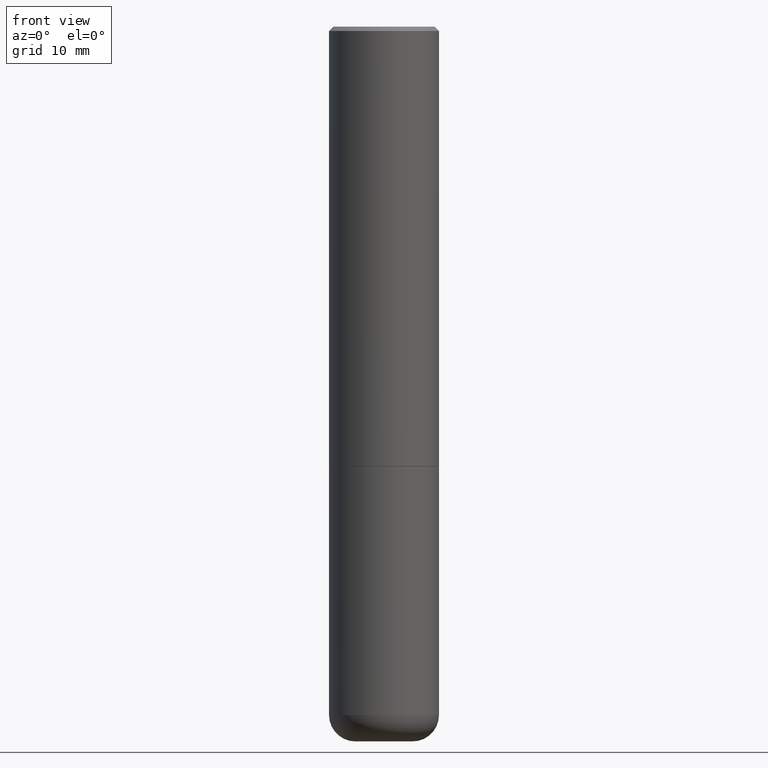
[diagram: clean part render]
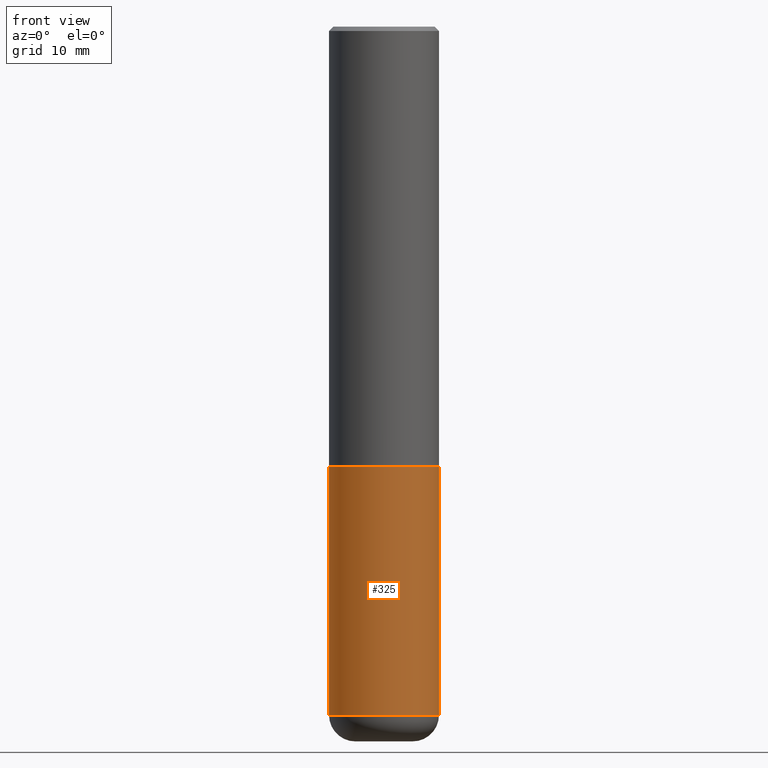
[diagram: same view with one face highlighted and labeled with its STEP entity id]
A machine part, front view. The second image highlights one B-rep face of the part: STEP entity #325.
In plain terms, the highlighted cylindrical surface (partial cylindrical patch) has radius 6.35 mm, axis along (-0, 0, 1).
Its self-contained STEP definition (entity closure, byte-faithful):
#8 = CARTESIAN_POINT ( 'NONE',  ( -0.2499999999999995559, 1.776356839400247309E-15, -1.229733772563724203E-29 ) ) ;
#14 = VECTOR ( 'NONE', #194, 39.37007874015748143 ) ;
#18 = CARTESIAN_POINT ( 'NONE',  ( -0.2499999999999996669, -7.179300771427075001E-15, -2.000000000000000000 ) ) ;
#40 = CYLINDRICAL_SURFACE ( 'NONE', #416, 0.2499999999999995559 ) ;
#56 = AXIS2_PLACEMENT_3D ( 'NONE', #310, #431, #392 ) ;
#64 = CARTESIAN_POINT ( 'NONE',  ( 0.2499999999999994449, -1.267409321338991461E-14, -3.130004569232299527 ) ) ;
#65 = VERTEX_POINT ( 'NONE', #237 ) ;
#67 = EDGE_CURVE ( 'NONE', #330, #456, #464, .T. ) ;
#78 = EDGE_CURVE ( 'NONE', #330, #457, #80, .T. ) ;
#80 = CIRCLE ( 'NONE', #56, 0.2499999999999994449 ) ;
#118 = CARTESIAN_POINT ( 'NONE',  ( 0.2499999999999995559, -1.745740669421563522E-15, 1.219044193948981706E-29 ) ) ;
#119 = FACE_OUTER_BOUND ( 'NONE', #189, .T. ) ;
#122 = DIRECTION ( 'NONE',  ( 1.000000000000000000, -6.982962677686266711E-15, 4.876176775795935232E-29 ) ) ;
#126 = VECTOR ( 'NONE', #196, 39.37007874015748143 ) ;
#139 = ORIENTED_EDGE ( 'NONE', *, *, #300, .T. ) ;
#161 = CIRCLE ( 'NONE', #230, 0.2499999999999996669 ) ;
#189 = EDGE_LOOP ( 'NONE', ( #294, #252, #139, #298 ) ) ;
#194 = DIRECTION ( 'NONE',  ( -2.445468806185136877E-29, 3.491481338843145188E-15, 1.000000000000000000 ) ) ;
#196 = DIRECTION ( 'NONE',  ( -2.445468806185136877E-29, 3.491481338843145188E-15, 1.000000000000000000 ) ) ;
#199 = LINE ( 'NONE', #118, #126 ) ;
#230 = AXIS2_PLACEMENT_3D ( 'NONE', #245, #369, #323 ) ;
#237 = CARTESIAN_POINT ( 'NONE',  ( 0.2499999999999996669, -8.728703347107855476E-15, -2.000000000000000000 ) ) ;
#245 = CARTESIAN_POINT ( 'NONE',  ( 4.890937612370273194E-29, -6.982962677686291165E-15, -2.000000000000000000 ) ) ;
#252 = ORIENTED_EDGE ( 'NONE', *, *, #78, .T. ) ;
#283 = CARTESIAN_POINT ( 'NONE',  ( 0.000000000000000000, 0.000000000000000000, 0.000000000000000000 ) ) ;
#294 = ORIENTED_EDGE ( 'NONE', *, *, #67, .F. ) ;
#298 = ORIENTED_EDGE ( 'NONE', *, *, #453, .F. ) ;
#300 = EDGE_CURVE ( 'NONE', #457, #65, #199, .T. ) ;
#310 = CARTESIAN_POINT ( 'NONE',  ( 7.654328537274535481E-29, -1.092835254396835267E-14, -3.130004569232299527 ) ) ;
#315 = DIRECTION ( 'NONE',  ( -2.445468806185136597E-29, 3.491481338843145583E-15, 1.000000000000000000 ) ) ;
#323 = DIRECTION ( 'NONE',  ( 1.000000000000000000, -6.982962677686268288E-15, 0.000000000000000000 ) ) ;
#325 = ADVANCED_FACE ( 'NONE', ( #119 ), #40, .T. ) ;
#330 = VERTEX_POINT ( 'NONE', #433 ) ;
#369 = DIRECTION ( 'NONE',  ( -2.445468806185136597E-29, 3.491481338843145583E-15, 1.000000000000000000 ) ) ;
#392 = DIRECTION ( 'NONE',  ( 1.000000000000000000, -6.982962677686263555E-15, 0.000000000000000000 ) ) ;
#416 = AXIS2_PLACEMENT_3D ( 'NONE', #283, #315, #122 ) ;
#431 = DIRECTION ( 'NONE',  ( -2.445468806185136597E-29, 3.491481338843145583E-15, 1.000000000000000000 ) ) ;
#433 = CARTESIAN_POINT ( 'NONE',  ( -0.2499999999999994449, -7.179300771427075001E-15, -3.130004569232299527 ) ) ;
#453 = EDGE_CURVE ( 'NONE', #456, #65, #161, .T. ) ;
#456 = VERTEX_POINT ( 'NONE', #18 ) ;
#457 = VERTEX_POINT ( 'NONE', #64 ) ;
#464 = LINE ( 'NONE', #8, #14 ) ;